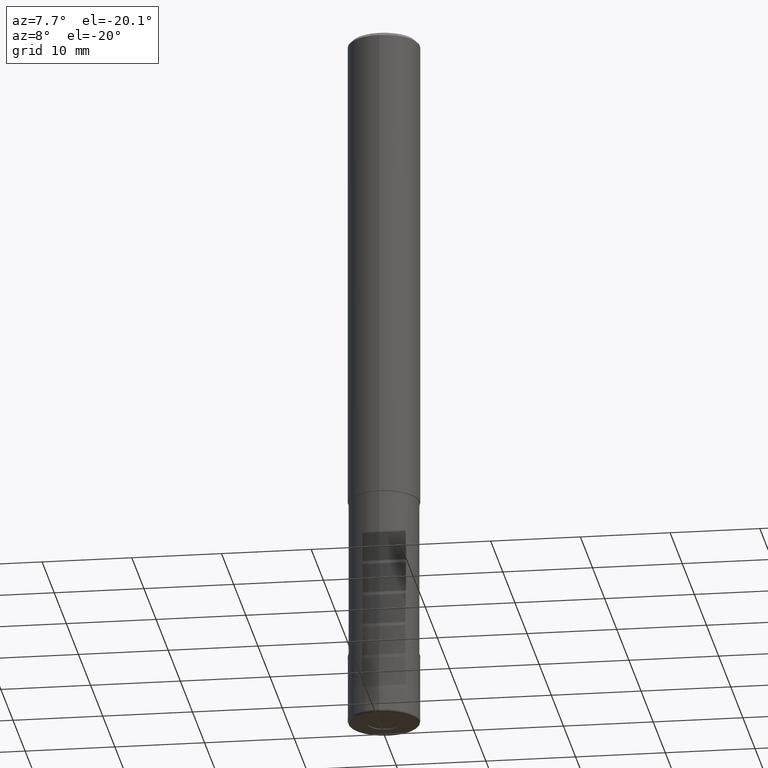
[diagram: clean part render]
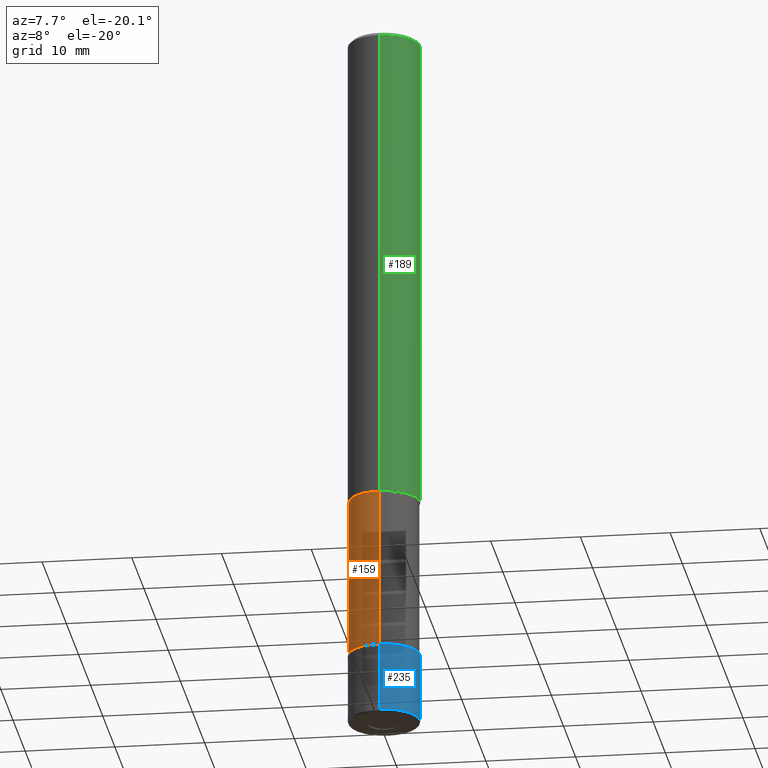
[diagram: same view with three faces highlighted in distinct colors, each labeled with its STEP entity id]
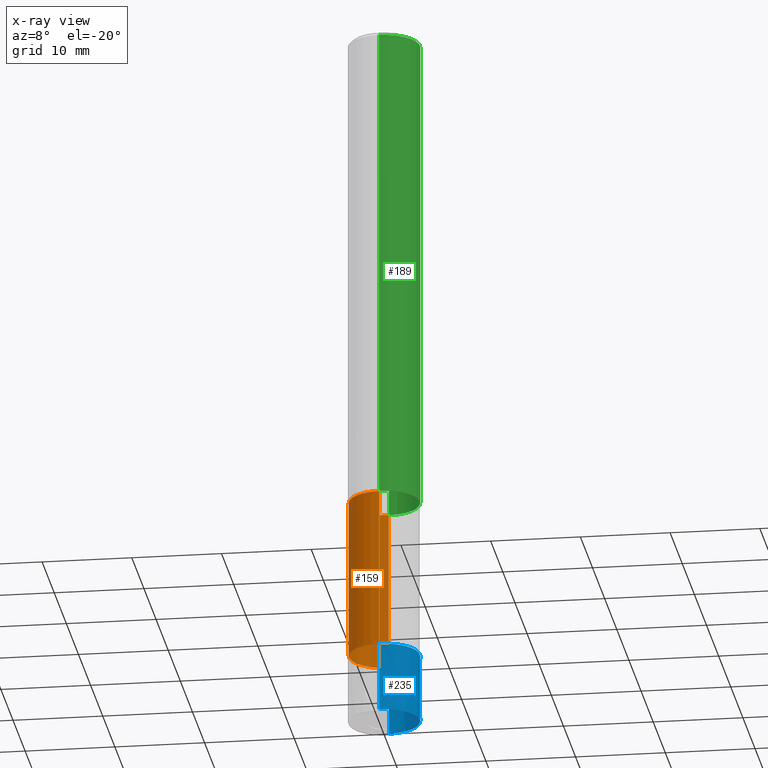
[diagram: x-ray of the same camera — body ghosted, the three highlighted faces saturated]
A machine part, auxiliary view with three faces highlighted in distinct colors.
The next image is the same camera in x-ray (body ghosted, the three faces saturated) — at least one of them is partly hidden behind the body in this view.
Their STEP definitions:

[orange] entity #159 — the highlighted cylindrical surface (edge-blend (fillet) strip) has radius 3.9049 mm, axis along (-0, -0, 1).
#151=VERTEX_POINT('',#343);
#155=VERTEX_POINT('',#347);
#159=ADVANCED_FACE('',(#353),#354,.T.);
#161=EDGE_CURVE('',#151,#155,#356,.T.);
#175=VERTEX_POINT('',#372);
#187=EDGE_CURVE('',#175,#151,#385,.T.);
#209=EDGE_CURVE('',#233,#155,#409,.T.);
#215=EDGE_CURVE('',#233,#175,#415,.T.);
#233=VERTEX_POINT('',#436);
#343=CARTESIAN_POINT('',(0.0,3.90495,-54.0));
#347=CARTESIAN_POINT('',(0.0,3.90495,-72.0));
#353=FACE_OUTER_BOUND('',#569,.T.);
#354=CYLINDRICAL_SURFACE('',#570,3.90495);
#356=LINE('',#573,#574);
#372=CARTESIAN_POINT('',(4.78202658135869E-016,-3.90495,-54.0));
#385=CIRCLE('',#614,3.90495);
#409=CIRCLE('',#643,3.90495);
#415=LINE('',#649,#650);
#436=CARTESIAN_POINT('',(4.78202658135869E-016,-3.90495,-72.0));
#569=EDGE_LOOP('',(#812,#813,#814,#815));
#570=AXIS2_PLACEMENT_3D('',#816,#817,#818);
#573=CARTESIAN_POINT('',(-4.78202658135869E-016,3.90495,-63.0));
#574=VECTOR('',#819,1.0);
#614=AXIS2_PLACEMENT_3D('',#856,#857,#858);
#643=AXIS2_PLACEMENT_3D('',#882,#883,#884);
#649=CARTESIAN_POINT('',(4.78202658135869E-016,-3.90495,-63.0));
#650=VECTOR('',#886,1.0);
#812=ORIENTED_EDGE('',*,*,#161,.T.);
#813=ORIENTED_EDGE('',*,*,#209,.F.);
#814=ORIENTED_EDGE('',*,*,#215,.T.);
#815=ORIENTED_EDGE('',*,*,#187,.T.);
#816=CARTESIAN_POINT('',(0.0,0.0,-63.0));
#817=DIRECTION('',(-0.0,-0.0,1.0));
#818=DIRECTION('',(0.0,1.0,0.0));
#819=DIRECTION('',(0.0,0.0,-1.0));
#856=CARTESIAN_POINT('',(0.0,0.0,-54.0));
#857=DIRECTION('',(0.0,0.0,-1.0));
#858=DIRECTION('',(0.0,1.0,0.0));
#882=CARTESIAN_POINT('',(0.0,0.0,-72.0));
#883=DIRECTION('',(0.0,0.0,-1.0));
#884=DIRECTION('',(0.0,1.0,0.0));
#886=DIRECTION('',(-0.0,-0.0,1.0));

[blue] entity #235 — the highlighted conical surface has half-angle 0.001 deg.
#121=EDGE_CURVE('',#127,#221,#308,.T.);
#127=VERTEX_POINT('',#315);
#169=EDGE_CURVE('',#127,#193,#366,.T.);
#193=VERTEX_POINT('',#392);
#201=EDGE_CURVE('',#221,#257,#400,.T.);
#221=VERTEX_POINT('',#422);
#235=ADVANCED_FACE('',(#438),#439,.T.);
#257=VERTEX_POINT('',#465);
#283=EDGE_CURVE('',#257,#193,#494,.T.);
#308=LINE('',#513,#514);
#315=CARTESIAN_POINT('',(0.0,3.9999,-72.0));
#366=CIRCLE('',#587,3.9999);
#392=CARTESIAN_POINT('',(4.89830295465413E-016,-3.9999,-72.0));
#400=CIRCLE('',#633,4.0);
#422=CARTESIAN_POINT('',(0.0,4.0,-79.7));
#438=FACE_OUTER_BOUND('',#676,.T.);
#439=CONICAL_SURFACE('',#677,3.99995,1.29870129863103E-005);
#465=CARTESIAN_POINT('',(4.89842541528951E-016,-4.0,-79.7));
#494=LINE('',#744,#745);
#513=CARTESIAN_POINT('',(-4.89836418497182E-016,3.99995,-75.85));
#514=VECTOR('',#750,1.0);
#587=AXIS2_PLACEMENT_3D('',#834,#835,#836);
#633=AXIS2_PLACEMENT_3D('',#871,#872,#873);
#676=EDGE_LOOP('',(#914,#915,#916,#917));
#677=AXIS2_PLACEMENT_3D('',#918,#919,#920);
#744=CARTESIAN_POINT('',(4.89836418497182E-016,-3.99995,-75.85));
#745=VECTOR('',#994,1.0);
#750=DIRECTION('',(-1.59039786197622E-021,1.29870129859452E-005,-0.999999999915669));
#834=CARTESIAN_POINT('',(0.0,0.0,-72.0));
#835=DIRECTION('',(0.0,0.0,-1.0));
#836=DIRECTION('',(0.0,1.0,0.0));
#871=CARTESIAN_POINT('',(0.0,0.0,-79.7));
#872=DIRECTION('',(0.0,0.0,-1.0));
#873=DIRECTION('',(0.0,1.0,0.0));
#914=ORIENTED_EDGE('',*,*,#121,.F.);
#915=ORIENTED_EDGE('',*,*,#169,.T.);
#916=ORIENTED_EDGE('',*,*,#283,.F.);
#917=ORIENTED_EDGE('',*,*,#201,.F.);
#918=CARTESIAN_POINT('',(0.0,0.0,-75.85));
#919=DIRECTION('',(0.0,-0.0,-1.0));
#920=DIRECTION('',(0.0,1.0,0.0));
#994=DIRECTION('',(-1.59039786197622E-021,1.29870129859452E-005,0.999999999915669));

[green] entity #189 — the highlighted cylindrical surface (edge-blend (fillet) strip) has radius 4 mm, axis along (-0, -0, 1).
#129=VERTEX_POINT('',#317);
#149=VERTEX_POINT('',#341);
#177=EDGE_CURVE('',#231,#149,#374,.T.);
#189=ADVANCED_FACE('',(#387),#388,.T.);
#195=EDGE_CURVE('',#129,#205,#394,.T.);
#205=VERTEX_POINT('',#404);
#231=VERTEX_POINT('',#434);
#251=EDGE_CURVE('',#129,#149,#458,.T.);
#275=EDGE_CURVE('',#205,#231,#485,.T.);
#317=CARTESIAN_POINT('',(0.0,4.0,-0.399999999999999));
#341=CARTESIAN_POINT('',(4.89842541528951E-016,-4.0,-0.399999999999999));
#374=LINE('',#598,#599);
#387=FACE_OUTER_BOUND('',#616,.T.);
#388=CYLINDRICAL_SURFACE('',#617,4.0);
#394=LINE('',#624,#625);
#404=CARTESIAN_POINT('',(0.0,4.0,-54.0));
#434=CARTESIAN_POINT('',(4.89842541528951E-016,-4.0,-54.0));
#458=CIRCLE('',#701,4.0);
#485=CIRCLE('',#732,4.0);
#598=CARTESIAN_POINT('',(4.89842541528951E-016,-4.0,-27.2));
#599=VECTOR('',#843,1.0);
#616=EDGE_LOOP('',(#860,#861,#862,#863));
#617=AXIS2_PLACEMENT_3D('',#864,#865,#866);
#624=CARTESIAN_POINT('',(-4.89842541528951E-016,4.0,-27.2));
#625=VECTOR('',#867,1.0);
#701=AXIS2_PLACEMENT_3D('',#942,#943,#944);
#732=AXIS2_PLACEMENT_3D('',#982,#983,#984);
#843=DIRECTION('',(-0.0,-0.0,1.0));
#860=ORIENTED_EDGE('',*,*,#195,.F.);
#861=ORIENTED_EDGE('',*,*,#251,.T.);
#862=ORIENTED_EDGE('',*,*,#177,.F.);
#863=ORIENTED_EDGE('',*,*,#275,.F.);
#864=CARTESIAN_POINT('',(0.0,0.0,-27.2));
#865=DIRECTION('',(-0.0,-0.0,1.0));
#866=DIRECTION('',(0.0,1.0,0.0));
#867=DIRECTION('',(0.0,0.0,-1.0));
#942=CARTESIAN_POINT('',(0.0,0.0,-0.399999999999999));
#943=DIRECTION('',(0.0,0.0,-1.0));
#944=DIRECTION('',(0.0,1.0,0.0));
#982=CARTESIAN_POINT('',(0.0,0.0,-54.0));
#983=DIRECTION('',(0.0,0.0,-1.0));
#984=DIRECTION('',(0.0,1.0,0.0));